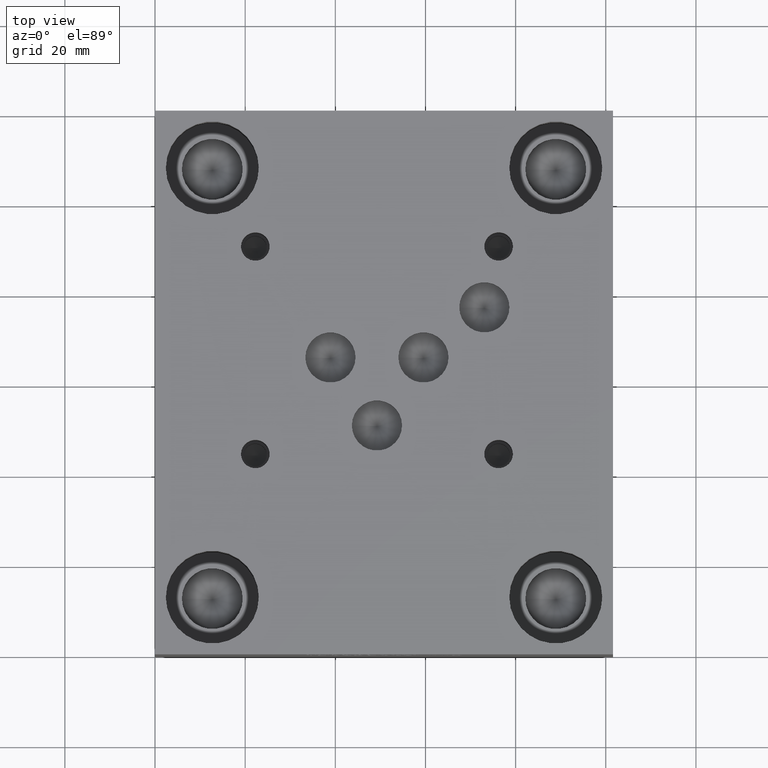
[diagram: clean part render]
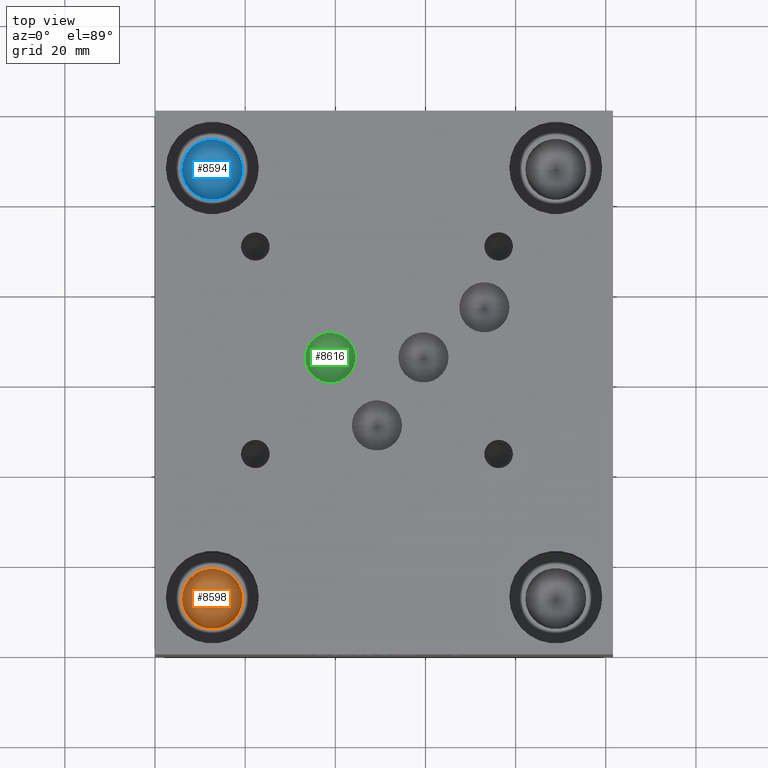
[diagram: same view with three faces highlighted in distinct colors, each labeled with its STEP entity id]
A machine part, top view with three faces highlighted in distinct colors.
Their STEP definitions:

[orange] entity #8598 — the highlighted conical surface has half-angle 60 deg.
#23=CONICAL_SURFACE('',#8981,3.37185,1.0471975511966);
#85=CIRCLE('',#8982,6.7437);
#86=CIRCLE('',#8983,6.7437);
#1008=FACE_OUTER_BOUND('',#1486,.T.);
#1486=EDGE_LOOP('',(#7349,#7350,#7351,#7352));
#2345=LINE('',#14578,#3172);
#3172=VECTOR('',#10538,3.37185);
#3943=VERTEX_POINT('',#14574);
#3944=VERTEX_POINT('',#14575);
#3945=VERTEX_POINT('',#14577);
#5106=EDGE_CURVE('',#3943,#3944,#85,.T.);
#5107=EDGE_CURVE('',#3944,#3945,#2345,.T.);
#5108=EDGE_CURVE('',#3944,#3943,#86,.T.);
#7349=ORIENTED_EDGE('',*,*,#5106,.T.);
#7350=ORIENTED_EDGE('',*,*,#5107,.T.);
#7351=ORIENTED_EDGE('',*,*,#5107,.F.);
#7352=ORIENTED_EDGE('',*,*,#5108,.T.);
#8598=ADVANCED_FACE('',(#1008),#23,.F.);
#8981=AXIS2_PLACEMENT_3D('',#14573,#10534,#10535);
#8982=AXIS2_PLACEMENT_3D('',#14576,#10536,#10537);
#8983=AXIS2_PLACEMENT_3D('',#14579,#10539,#10540);
#10534=DIRECTION('center_axis',(0.,0.,1.));
#10535=DIRECTION('ref_axis',(1.,0.,0.));
#10536=DIRECTION('center_axis',(0.,0.,1.));
#10537=DIRECTION('ref_axis',(1.,0.,0.));
#10538=DIRECTION('',(0.866025403784439,1.06057523872491E-16,-0.5));
#10539=DIRECTION('center_axis',(0.,0.,1.));
#10540=DIRECTION('ref_axis',(1.,0.,0.));
#14573=CARTESIAN_POINT('Origin',(12.7,12.7,13.209781494833));
#14574=CARTESIAN_POINT('',(19.4437,12.7,15.15652));
#14575=CARTESIAN_POINT('',(5.9563,12.7,15.15652));
#14576=CARTESIAN_POINT('Origin',(12.7,12.7,15.15652));
#14577=CARTESIAN_POINT('',(12.7,12.7,11.2630429896659));
#14578=CARTESIAN_POINT('',(9.32815,12.7,13.209781494833));
#14579=CARTESIAN_POINT('Origin',(12.7,12.7,15.15652));

[blue] entity #8594 — the highlighted conical surface has half-angle 60 deg.
#22=CONICAL_SURFACE('',#8970,3.37185,1.0471975511966);
#78=CIRCLE('',#8971,6.7437);
#79=CIRCLE('',#8972,6.7437);
#1004=FACE_OUTER_BOUND('',#1481,.T.);
#1481=EDGE_LOOP('',(#7331,#7332,#7333,#7334));
#2342=LINE('',#14556,#3169);
#3169=VECTOR('',#10513,3.37185);
#3935=VERTEX_POINT('',#14552);
#3936=VERTEX_POINT('',#14553);
#3937=VERTEX_POINT('',#14555);
#5096=EDGE_CURVE('',#3935,#3936,#78,.T.);
#5097=EDGE_CURVE('',#3936,#3937,#2342,.T.);
#5098=EDGE_CURVE('',#3936,#3935,#79,.T.);
#7331=ORIENTED_EDGE('',*,*,#5096,.T.);
#7332=ORIENTED_EDGE('',*,*,#5097,.T.);
#7333=ORIENTED_EDGE('',*,*,#5097,.F.);
#7334=ORIENTED_EDGE('',*,*,#5098,.T.);
#8594=ADVANCED_FACE('',(#1004),#22,.F.);
#8970=AXIS2_PLACEMENT_3D('',#14551,#10509,#10510);
#8971=AXIS2_PLACEMENT_3D('',#14554,#10511,#10512);
#8972=AXIS2_PLACEMENT_3D('',#14557,#10514,#10515);
#10509=DIRECTION('center_axis',(0.,0.,1.));
#10510=DIRECTION('ref_axis',(1.,0.,0.));
#10511=DIRECTION('center_axis',(0.,0.,1.));
#10512=DIRECTION('ref_axis',(1.,0.,0.));
#10513=DIRECTION('',(0.866025403784439,1.06057523872491E-16,-0.5));
#10514=DIRECTION('center_axis',(0.,0.,1.));
#10515=DIRECTION('ref_axis',(1.,0.,0.));
#14551=CARTESIAN_POINT('Origin',(12.7,107.95,13.209781494833));
#14552=CARTESIAN_POINT('',(19.4437,107.95,15.15652));
#14553=CARTESIAN_POINT('',(5.9563,107.95,15.15652));
#14554=CARTESIAN_POINT('Origin',(12.7,107.95,15.15652));
#14555=CARTESIAN_POINT('',(12.7,107.95,11.2630429896659));
#14556=CARTESIAN_POINT('',(9.32815,107.95,13.209781494833));
#14557=CARTESIAN_POINT('Origin',(12.7,107.95,15.15652));

[green] entity #8616 — the highlighted conical surface has half-angle 60 deg.
#29=CONICAL_SURFACE('',#9032,2.7813,1.0471975511966);
#118=CIRCLE('',#9033,5.5626);
#119=CIRCLE('',#9034,5.5626);
#1026=FACE_OUTER_BOUND('',#1507,.T.);
#1507=EDGE_LOOP('',(#7433,#7434,#7435,#7436));
#2360=LINE('',#14683,#3187);
#3187=VECTOR('',#10655,2.7813);
#3982=VERTEX_POINT('',#14679);
#3983=VERTEX_POINT('',#14680);
#3984=VERTEX_POINT('',#14682);
#5154=EDGE_CURVE('',#3982,#3983,#118,.T.);
#5155=EDGE_CURVE('',#3983,#3984,#2360,.T.);
#5156=EDGE_CURVE('',#3983,#3982,#119,.T.);
#7433=ORIENTED_EDGE('',*,*,#5154,.T.);
#7434=ORIENTED_EDGE('',*,*,#5155,.T.);
#7435=ORIENTED_EDGE('',*,*,#5155,.F.);
#7436=ORIENTED_EDGE('',*,*,#5156,.T.);
#8616=ADVANCED_FACE('',(#1026),#29,.F.);
#9032=AXIS2_PLACEMENT_3D('',#14678,#10651,#10652);
#9033=AXIS2_PLACEMENT_3D('',#14681,#10653,#10654);
#9034=AXIS2_PLACEMENT_3D('',#14684,#10656,#10657);
#10651=DIRECTION('center_axis',(0.,0.,1.));
#10652=DIRECTION('ref_axis',(1.,0.,0.));
#10653=DIRECTION('center_axis',(0.,0.,1.));
#10654=DIRECTION('ref_axis',(1.,0.,0.));
#10655=DIRECTION('',(0.866025403784439,1.06057523872491E-16,-0.5));
#10656=DIRECTION('center_axis',(0.,0.,1.));
#10657=DIRECTION('ref_axis',(1.,0.,0.));
#14678=CARTESIAN_POINT('Origin',(38.90772,65.86982,33.2826456963029));
#14679=CARTESIAN_POINT('',(44.47032,65.86982,34.88843));
#14680=CARTESIAN_POINT('',(33.34512,65.86982,34.88843));
#14681=CARTESIAN_POINT('Origin',(38.90772,65.86982,34.88843));
#14682=CARTESIAN_POINT('',(38.90772,65.86982,31.6768613926058));
#14683=CARTESIAN_POINT('',(36.12642,65.86982,33.2826456963029));
#14684=CARTESIAN_POINT('Origin',(38.90772,65.86982,34.88843));